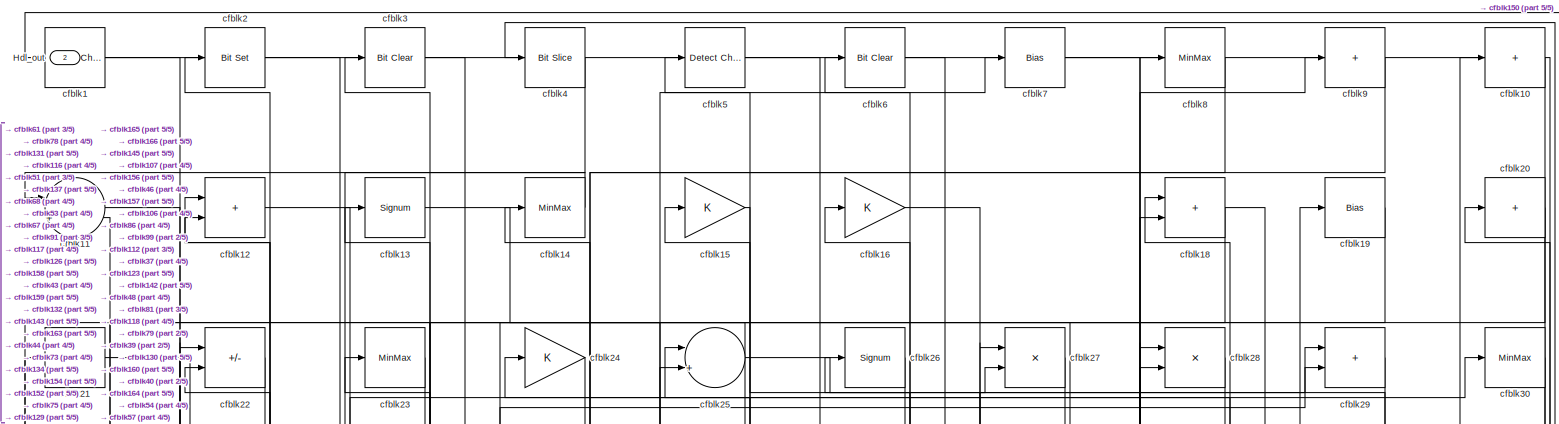
[diagram: root canvas - part 1/5, full width, top band]
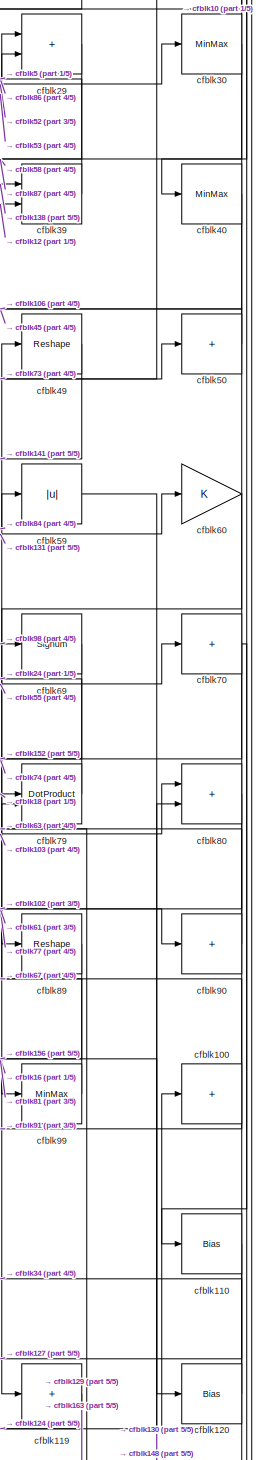
[diagram: root canvas - part 2/5, middle right region]
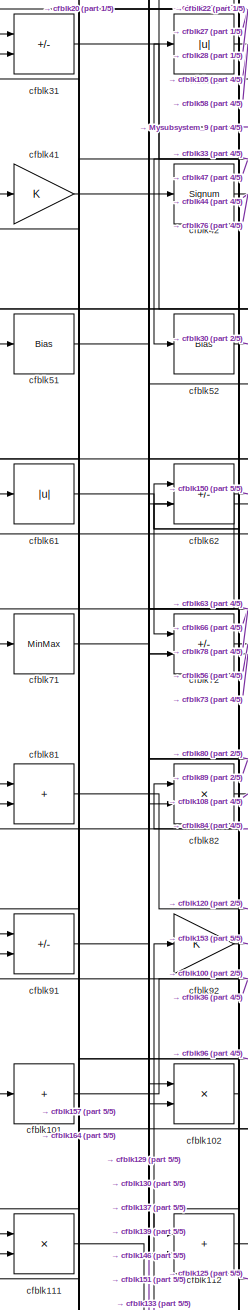
[diagram: root canvas - part 3/5, middle left region]
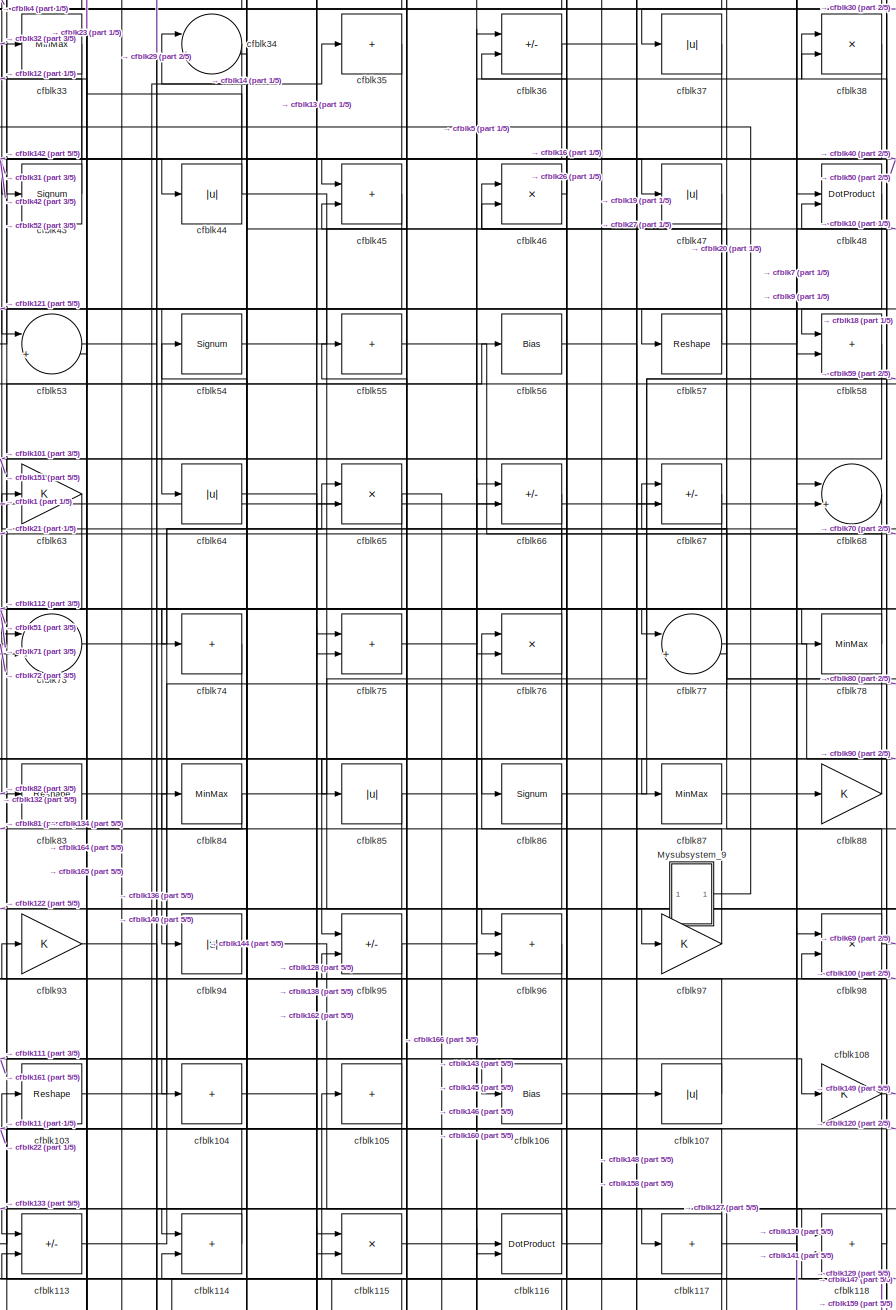
[diagram: root canvas - part 4/5, central region]
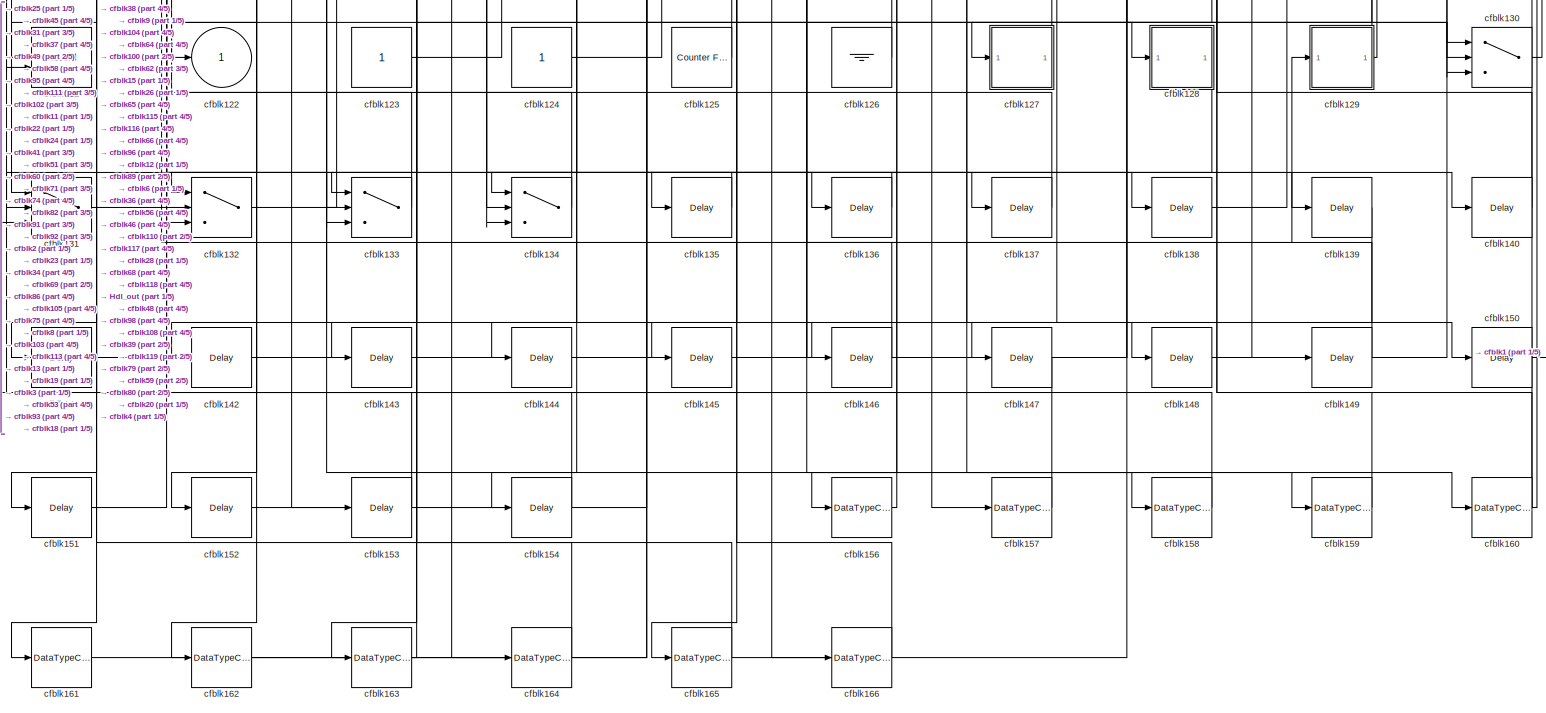
[diagram: root canvas - part 5/5, full width, bottom band]
MODEL slx_ee1c47e9f802
KIND model
CONFIG AbsTol = auto
CONFIG EnableMultiTasking = off
CONFIG FixedStep = auto
CONFIG MaxStep = auto
CONFIG MinStep = auto
CONFIG RelTol = 1e-3
CONFIG SampleTimeConstraint = Unconstrained
CONFIG SolverName = VariableStepAuto
CONFIG StartTime = 0.0
CONFIG StopTime = 10.0
BLOCK [Outport] Hdl_out
  OutDataTypeStr = uint8
  Port = 2
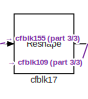
[diagram: Mysubsystem_9 - part 1/3, top right region]
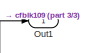
[diagram: Mysubsystem_9 - part 2/3, top left region]
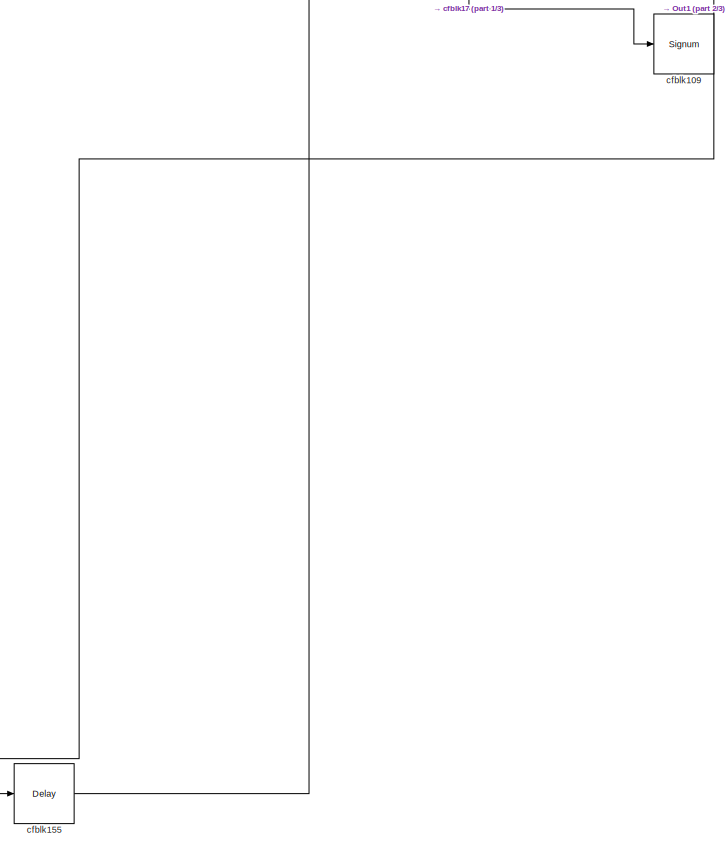
[diagram: Mysubsystem_9 - part 3/3, bottom right region]
BLOCK [SubSystem] Mysubsystem_9
  RTWFcnName = Mysubsystem_9
  RTWFcnNameOpts = User specified
  RTWFileNameOpts = Use function name
  RTWSystemCode = Reusable function
  TreatAsAtomicUnit = on
BLOCK [Outport] Mysubsystem_9/Out1
BLOCK [Signum] Mysubsystem_9/cfblk109
BLOCK [Delay] Mysubsystem_9/cfblk155
  InputPortMap = u0
  SampleTime = 1
BLOCK [Reshape] Mysubsystem_9/cfblk17
BLOCK [Reference] cfblk1  REF=simulink/Logic and Bit
Operations/Detect
Change
  LibrarySourceBlock = hdlsllib/Logic and Bit\nOperations/Detect\nChange
  SourceBlock = simulink/Logic and Bit\nOperations/Detect\nChange
  SourceType = Detect Change
BLOCK [Sum] cfblk10
  IconShape = rectangular
  Inputs = +
  OutDataTypeStr = uint8
BLOCK [Sum] cfblk100
  IconShape = rectangular
  Inputs = +
  OutDataTypeStr = uint8
BLOCK [Sum] cfblk101
  IconShape = rectangular
  Inputs = +
  OutDataTypeStr = uint8
BLOCK [Product] cfblk102
  Inputs = */
  OutDataTypeStr = uint8
  RndMeth = Zero
  SaturateOnIntegerOverflow = on
BLOCK [Reshape] cfblk103
BLOCK [Sum] cfblk104
  IconShape = rectangular
  Inputs = +
  OutDataTypeStr = uint8
BLOCK [Sum] cfblk105
  IconShape = rectangular
  Inputs = +
  OutDataTypeStr = uint8
BLOCK [Bias] cfblk106
  Bias = 0.0
  SaturateOnIntegerOverflow = off
BLOCK [Abs] cfblk107
  OutDataTypeStr = uint8
  SaturateOnIntegerOverflow = off
BLOCK [Gain] cfblk108
  OutDataTypeStr = uint8
BLOCK [Sum] cfblk11
  Inputs = |++
  OutDataTypeStr = uint8
BLOCK [Bias] cfblk110
  Bias = 0.0
  SaturateOnIntegerOverflow = off
BLOCK [Product] cfblk111
  Inputs = */
  OutDataTypeStr = uint8
  RndMeth = Zero
  SaturateOnIntegerOverflow = on
BLOCK [Sum] cfblk112
  IconShape = rectangular
  OutDataTypeStr = uint8
BLOCK [Sum] cfblk113
  IconShape = rectangular
  Inputs = +-
  OutDataTypeStr = uint8
BLOCK [Sum] cfblk114
  IconShape = rectangular
  OutDataTypeStr = uint8
BLOCK [Product] cfblk115
  Inputs = */
  OutDataTypeStr = uint8
  RndMeth = Zero
  SaturateOnIntegerOverflow = on
BLOCK [DotProduct] cfblk116
  OutDataTypeStr = uint8
BLOCK [Sum] cfblk117
  IconShape = rectangular
  Inputs = +
  OutDataTypeStr = uint8
BLOCK [Sum] cfblk118
  IconShape = rectangular
  OutDataTypeStr = uint8
BLOCK [Sum] cfblk119
  IconShape = rectangular
  Inputs = +
  OutDataTypeStr = uint8
BLOCK [Sum] cfblk12
  IconShape = rectangular
  OutDataTypeStr = uint8
BLOCK [Bias] cfblk120
  Bias = 0.0
  SaturateOnIntegerOverflow = off
BLOCK [Record] cfblk121
  CompatibilityTag = XY
  FileSettingsInternal = {"entries":[{"content":{"excelSettings":{"content":{},"type":"Streamout.ExcelSettings"}},"type":"Streamout.FileSettingStorage","uuid":""}],"packageUris":["http:\/\/schema.mathworks.com\/mf0\/streamout_blocks\/R2020a"],"version":"1.0"}
  Layout = [1 1]
  SignalsInternal = {"entries":[{"content":{"signals":[{"content":{"blockPath":[],"dimensions":[1],"domain":"","lineColor":"#a2142f","plots":[1],"port":1,"signalID":19988,"signalName":"cfblk37"},"type":"RecordBlkView.Signal","uuid":""},{"content":{"blockPath":[],"dimensions":[1],"domain":"","lineColor":"#139fff","plots":[1],"port":2,"signalID":19991,"signalName":"cfblk45"},"type":"RecordBlkView.Signal","uuid":""}]},"...<+142ch>
  VisualizationBindings = {"xyplotplugin":{"info":[{"series":[{"bindingParametersList":[{"parameter":"X-Axis","signalID":19988,"signalName":"cfblk37"},{"parameter":"Y-Axis","signalID":19991,"signalName":"cfblk45"}],"seriesID":20262}],"subplotID":1}]}}
  st = -1
BLOCK [Outport] cfblk122
  OutDataTypeStr = uint8
  VectorParamsAs1DForOutWhenUnconnected = off
BLOCK [Constant] cfblk123
  OutDataTypeStr = uint8
  SampleTime = -1
BLOCK [Constant] cfblk124
  OutDataTypeStr = uint8
  SampleTime = -1
BLOCK [Reference] cfblk125  REF=hdlsllib/Sources/Counter
Free-Running
  SourceBlock = hdlsllib/Sources/Counter\nFree-Running
  SourceType = Counter Free-Running
BLOCK [Ground] cfblk126
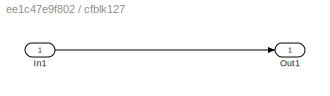
BLOCK [SubSystem] cfblk127
  LibrarySourceBlock = hdlsllib/Ports &\nSubsystems/Subsystem
BLOCK [Inport] cfblk127/In1
BLOCK [Outport] cfblk127/Out1
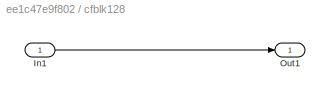
BLOCK [SubSystem] cfblk128
  LibrarySourceBlock = hdlsllib/Ports &\nSubsystems/Subsystem
BLOCK [Inport] cfblk128/In1
BLOCK [Outport] cfblk128/Out1
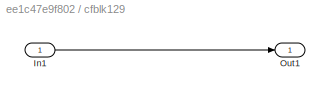
BLOCK [SubSystem] cfblk129
  LibrarySourceBlock = hdlsllib/Ports &\nSubsystems/Subsystem
BLOCK [Inport] cfblk129/In1
BLOCK [Outport] cfblk129/Out1
BLOCK [Signum] cfblk13
BLOCK [Switch] cfblk130
  InputSameDT = off
  OutDataTypeStr = uint8
  SaturateOnIntegerOverflow = off
BLOCK [Switch] cfblk131
  InputSameDT = off
  OutDataTypeStr = uint8
  SaturateOnIntegerOverflow = off
BLOCK [Switch] cfblk132
  InputSameDT = off
  OutDataTypeStr = uint8
  SaturateOnIntegerOverflow = off
BLOCK [Switch] cfblk133
  InputSameDT = off
  OutDataTypeStr = uint8
  SaturateOnIntegerOverflow = off
BLOCK [Switch] cfblk134
  InputSameDT = off
  OutDataTypeStr = uint8
  SaturateOnIntegerOverflow = off
BLOCK [Delay] cfblk135
  InputPortMap = u0
  SampleTime = 1
BLOCK [Delay] cfblk136
  InputPortMap = u0
  SampleTime = 1
BLOCK [Delay] cfblk137
  InputPortMap = u0
  SampleTime = 1
BLOCK [Delay] cfblk138
  InputPortMap = u0
  SampleTime = 1
BLOCK [Delay] cfblk139
  InputPortMap = u0
  SampleTime = 1
BLOCK [MinMax] cfblk14
  OutDataTypeStr = uint8
BLOCK [Delay] cfblk140
  InputPortMap = u0
  SampleTime = 1
BLOCK [Delay] cfblk141
  InputPortMap = u0
  SampleTime = 1
BLOCK [Delay] cfblk142
  InputPortMap = u0
  SampleTime = 1
BLOCK [Delay] cfblk143
  InputPortMap = u0
  SampleTime = 1
BLOCK [Delay] cfblk144
  InputPortMap = u0
  SampleTime = 1
BLOCK [Delay] cfblk145
  InputPortMap = u0
  SampleTime = 1
BLOCK [Delay] cfblk146
  InputPortMap = u0
  SampleTime = 1
BLOCK [Delay] cfblk147
  InputPortMap = u0
  SampleTime = 1
BLOCK [Delay] cfblk148
  InputPortMap = u0
  SampleTime = 1
BLOCK [Delay] cfblk149
  InputPortMap = u0
  SampleTime = 1
BLOCK [Gain] cfblk15
  OutDataTypeStr = uint8
BLOCK [Delay] cfblk150
  InputPortMap = u0
  SampleTime = 1
BLOCK [Delay] cfblk151
  InputPortMap = u0
  SampleTime = 1
BLOCK [Delay] cfblk152
  InputPortMap = u0
  SampleTime = 1
BLOCK [Delay] cfblk153
  InputPortMap = u0
  SampleTime = 1
BLOCK [Delay] cfblk154
  InputPortMap = u0
  SampleTime = 1
BLOCK [DataTypeConversion] cfblk156
  OutDataTypeStr = uint8
  RndMeth = Floor
  SaturateOnIntegerOverflow = off
BLOCK [DataTypeConversion] cfblk157
  OutDataTypeStr = uint8
  RndMeth = Floor
  SaturateOnIntegerOverflow = off
BLOCK [DataTypeConversion] cfblk158
  OutDataTypeStr = uint8
  RndMeth = Floor
  SaturateOnIntegerOverflow = off
BLOCK [DataTypeConversion] cfblk159
  OutDataTypeStr = uint8
  RndMeth = Floor
  SaturateOnIntegerOverflow = off
BLOCK [Gain] cfblk16
  OutDataTypeStr = uint8
BLOCK [DataTypeConversion] cfblk160
  OutDataTypeStr = uint8
  RndMeth = Floor
  SaturateOnIntegerOverflow = off
BLOCK [DataTypeConversion] cfblk161
  OutDataTypeStr = uint8
  RndMeth = Floor
  SaturateOnIntegerOverflow = off
BLOCK [DataTypeConversion] cfblk162
  OutDataTypeStr = uint8
  RndMeth = Floor
  SaturateOnIntegerOverflow = off
BLOCK [DataTypeConversion] cfblk163
  OutDataTypeStr = uint8
  RndMeth = Floor
  SaturateOnIntegerOverflow = off
BLOCK [DataTypeConversion] cfblk164
  OutDataTypeStr = uint8
  RndMeth = Floor
  SaturateOnIntegerOverflow = off
BLOCK [DataTypeConversion] cfblk165
  OutDataTypeStr = uint8
  RndMeth = Floor
  SaturateOnIntegerOverflow = off
BLOCK [DataTypeConversion] cfblk166
  OutDataTypeStr = uint8
  RndMeth = Floor
  SaturateOnIntegerOverflow = off
BLOCK [Sum] cfblk18
  IconShape = rectangular
  OutDataTypeStr = uint8
BLOCK [Bias] cfblk19
  Bias = 0.0
  SaturateOnIntegerOverflow = off
BLOCK [Reference] cfblk2  REF=simulink/Logic and Bit
Operations/Bit Set
  LibrarySourceBlock = hdlsllib/Logic and Bit\nOperations/Bit Set
  SourceBlock = simulink/Logic and Bit\nOperations/Bit Set
  SourceType = Bit Set
BLOCK [Sum] cfblk20
  IconShape = rectangular
  Inputs = +
  OutDataTypeStr = uint8
BLOCK [Sum] cfblk21
  IconShape = rectangular
  Inputs = +
  OutDataTypeStr = uint8
BLOCK [Sum] cfblk22
  IconShape = rectangular
  Inputs = +-
  OutDataTypeStr = uint8
BLOCK [MinMax] cfblk23
  OutDataTypeStr = uint8
BLOCK [Gain] cfblk24
  OutDataTypeStr = uint8
BLOCK [Sum] cfblk25
  Inputs = |++
  OutDataTypeStr = uint8
BLOCK [Signum] cfblk26
BLOCK [Product] cfblk27
  Inputs = */
  OutDataTypeStr = uint8
  RndMeth = Zero
  SaturateOnIntegerOverflow = on
BLOCK [Product] cfblk28
  Inputs = */
  OutDataTypeStr = uint8
  RndMeth = Zero
  SaturateOnIntegerOverflow = on
BLOCK [Sum] cfblk29
  IconShape = rectangular
  OutDataTypeStr = uint8
BLOCK [Reference] cfblk3  REF=simulink/Logic and Bit
Operations/Bit Clear
  LibrarySourceBlock = hdlsllib/Logic and Bit\nOperations/Bit Clear
  SourceBlock = simulink/Logic and Bit\nOperations/Bit Clear
  SourceType = Bit Clear
BLOCK [MinMax] cfblk30
  OutDataTypeStr = uint8
BLOCK [Sum] cfblk31
  IconShape = rectangular
  Inputs = +-
  OutDataTypeStr = uint8
BLOCK [Abs] cfblk32
  OutDataTypeStr = uint8
  SaturateOnIntegerOverflow = off
BLOCK [MinMax] cfblk33
  OutDataTypeStr = uint8
BLOCK [Sum] cfblk34
  Inputs = |++
  OutDataTypeStr = uint8
BLOCK [Sum] cfblk35
  IconShape = rectangular
  Inputs = +
  OutDataTypeStr = uint8
BLOCK [Sum] cfblk36
  IconShape = rectangular
  Inputs = +-
  OutDataTypeStr = uint8
BLOCK [Abs] cfblk37
  OutDataTypeStr = uint8
  SaturateOnIntegerOverflow = off
BLOCK [Product] cfblk38
  Inputs = */
  OutDataTypeStr = uint8
  RndMeth = Zero
  SaturateOnIntegerOverflow = on
BLOCK [Sum] cfblk39
  IconShape = rectangular
  OutDataTypeStr = uint8
BLOCK [Reference] cfblk4  REF=hdlsllib/Logic and Bit
Operations/Bit Slice
  SourceBlock = hdlsllib/Logic and Bit\nOperations/Bit Slice
  SourceType = Bit Slice
BLOCK [MinMax] cfblk40
  OutDataTypeStr = uint8
BLOCK [Gain] cfblk41
  OutDataTypeStr = uint8
BLOCK [Signum] cfblk42
BLOCK [Signum] cfblk43
BLOCK [Abs] cfblk44
  OutDataTypeStr = uint8
  SaturateOnIntegerOverflow = off
BLOCK [Sum] cfblk45
  IconShape = rectangular
  OutDataTypeStr = uint8
BLOCK [Product] cfblk46
  Inputs = */
  OutDataTypeStr = uint8
  RndMeth = Zero
  SaturateOnIntegerOverflow = on
BLOCK [Abs] cfblk47
  OutDataTypeStr = uint8
  SaturateOnIntegerOverflow = off
BLOCK [DotProduct] cfblk48
  OutDataTypeStr = uint8
BLOCK [Reshape] cfblk49
BLOCK [Reference] cfblk5  REF=simulink/Logic and Bit
Operations/Detect
Change
  LibrarySourceBlock = hdlsllib/Logic and Bit\nOperations/Detect\nChange
  SourceBlock = simulink/Logic and Bit\nOperations/Detect\nChange
  SourceType = Detect Change
BLOCK [Sum] cfblk50
  IconShape = rectangular
  Inputs = +
  OutDataTypeStr = uint8
BLOCK [Bias] cfblk51
  Bias = 0.0
  SaturateOnIntegerOverflow = off
BLOCK [Bias] cfblk52
  Bias = 0.0
  SaturateOnIntegerOverflow = off
BLOCK [Sum] cfblk53
  Inputs = |++
  OutDataTypeStr = uint8
BLOCK [Signum] cfblk54
BLOCK [Sum] cfblk55
  IconShape = rectangular
  Inputs = +
  OutDataTypeStr = uint8
BLOCK [Bias] cfblk56
  Bias = 0.0
  SaturateOnIntegerOverflow = off
BLOCK [Reshape] cfblk57
BLOCK [Sum] cfblk58
  IconShape = rectangular
  OutDataTypeStr = uint8
BLOCK [Abs] cfblk59
  OutDataTypeStr = uint8
  SaturateOnIntegerOverflow = off
BLOCK [Reference] cfblk6  REF=simulink/Logic and Bit
Operations/Bit Clear
  LibrarySourceBlock = hdlsllib/Logic and Bit\nOperations/Bit Clear
  SourceBlock = simulink/Logic and Bit\nOperations/Bit Clear
  SourceType = Bit Clear
BLOCK [Gain] cfblk60
  OutDataTypeStr = uint8
BLOCK [Abs] cfblk61
  OutDataTypeStr = uint8
  SaturateOnIntegerOverflow = off
BLOCK [Sum] cfblk62
  IconShape = rectangular
  Inputs = +-
  OutDataTypeStr = uint8
BLOCK [Gain] cfblk63
  OutDataTypeStr = uint8
BLOCK [Abs] cfblk64
  OutDataTypeStr = uint8
  SaturateOnIntegerOverflow = off
BLOCK [Product] cfblk65
  Inputs = */
  OutDataTypeStr = uint8
  RndMeth = Zero
  SaturateOnIntegerOverflow = on
BLOCK [Sum] cfblk66
  IconShape = rectangular
  Inputs = +-
  OutDataTypeStr = uint8
BLOCK [Sum] cfblk67
  IconShape = rectangular
  Inputs = +-
  OutDataTypeStr = uint8
BLOCK [Sum] cfblk68
  Inputs = |++
  OutDataTypeStr = uint8
BLOCK [Signum] cfblk69
BLOCK [Bias] cfblk7
  Bias = 0.0
  SaturateOnIntegerOverflow = off
BLOCK [Sum] cfblk70
  IconShape = rectangular
  Inputs = +
  OutDataTypeStr = uint8
BLOCK [MinMax] cfblk71
  OutDataTypeStr = uint8
BLOCK [Sum] cfblk72
  IconShape = rectangular
  Inputs = +-
  OutDataTypeStr = uint8
BLOCK [Sum] cfblk73
  Inputs = |++
  OutDataTypeStr = uint8
BLOCK [Sum] cfblk74
  IconShape = rectangular
  Inputs = +
  OutDataTypeStr = uint8
BLOCK [Sum] cfblk75
  IconShape = rectangular
  OutDataTypeStr = uint8
BLOCK [Product] cfblk76
  Inputs = */
  OutDataTypeStr = uint8
  RndMeth = Zero
  SaturateOnIntegerOverflow = on
BLOCK [Sum] cfblk77
  Inputs = |++
  OutDataTypeStr = uint8
BLOCK [MinMax] cfblk78
  OutDataTypeStr = uint8
BLOCK [DotProduct] cfblk79
  OutDataTypeStr = uint8
BLOCK [MinMax] cfblk8
  OutDataTypeStr = uint8
BLOCK [Sum] cfblk80
  IconShape = rectangular
  OutDataTypeStr = uint8
BLOCK [Sum] cfblk81
  IconShape = rectangular
  OutDataTypeStr = uint8
BLOCK [Product] cfblk82
  Inputs = */
  OutDataTypeStr = uint8
  RndMeth = Zero
  SaturateOnIntegerOverflow = on
BLOCK [Reshape] cfblk83
BLOCK [MinMax] cfblk84
  OutDataTypeStr = uint8
BLOCK [Abs] cfblk85
  OutDataTypeStr = uint8
  SaturateOnIntegerOverflow = off
BLOCK [Signum] cfblk86
BLOCK [MinMax] cfblk87
  OutDataTypeStr = uint8
BLOCK [Gain] cfblk88
  OutDataTypeStr = uint8
BLOCK [Reshape] cfblk89
BLOCK [Sum] cfblk9
  IconShape = rectangular
  Inputs = +
  OutDataTypeStr = uint8
BLOCK [Sum] cfblk90
  IconShape = rectangular
  Inputs = +
  OutDataTypeStr = uint8
BLOCK [Sum] cfblk91
  IconShape = rectangular
  Inputs = +-
  OutDataTypeStr = uint8
BLOCK [Gain] cfblk92
  OutDataTypeStr = uint8
BLOCK [Gain] cfblk93
  OutDataTypeStr = uint8
BLOCK [Abs] cfblk94
  OutDataTypeStr = uint8
  SaturateOnIntegerOverflow = off
BLOCK [Sum] cfblk95
  IconShape = rectangular
  Inputs = +-
  OutDataTypeStr = uint8
BLOCK [Sum] cfblk96
  IconShape = rectangular
  OutDataTypeStr = uint8
BLOCK [Gain] cfblk97
  OutDataTypeStr = uint8
BLOCK [Product] cfblk98
  Inputs = */
  OutDataTypeStr = uint8
  RndMeth = Zero
  SaturateOnIntegerOverflow = on
BLOCK [MinMax] cfblk99
  OutDataTypeStr = uint8
NET Mysubsystem_9/cfblk109:1 -> Mysubsystem_9/Out1:1, Mysubsystem_9/cfblk155:1
LINE Mysubsystem_9/cfblk155:1 -> Mysubsystem_9/cfblk17:1
LINE Mysubsystem_9/cfblk17:1 -> Mysubsystem_9/cfblk109:1
LINE Mysubsystem_9:1 -> cfblk32:1
NET cfblk100:1 -> cfblk67:1, cfblk91:2
LINE cfblk101:1 -> cfblk36:1
LINE cfblk102:1 -> cfblk82:1
LINE cfblk103:1 -> cfblk80:1
NET cfblk104:1 -> cfblk128:1, cfblk84:1
NET cfblk105:1 -> cfblk133:2, cfblk54:1
LINE cfblk106:1 -> cfblk27:1
NET cfblk107:1 -> cfblk26:1, cfblk95:2
NET cfblk108:1 -> cfblk133:1, cfblk149:1, cfblk36:2
LINE cfblk10:1 -> cfblk40:1
LINE cfblk110:1 -> cfblk127:1
LINE cfblk111:1 -> cfblk129:1
LINE cfblk112:1 -> cfblk28:2
LINE cfblk113:1 -> cfblk65:1
LINE cfblk114:1 -> cfblk35:1
LINE cfblk115:1 -> cfblk160:1
NET cfblk116:1 -> cfblk107:1, cfblk11:2
NET cfblk117:1 -> cfblk114:2, cfblk130:3, cfblk22:2, cfblk34:2
NET cfblk118:1 -> cfblk147:1, cfblk18:1
LINE cfblk119:1 -> cfblk163:1
LINE cfblk11:1 -> cfblk137:1
LINE cfblk120:1 -> cfblk34:1
LINE cfblk123:1 -> cfblk18:2
LINE cfblk124:1 -> cfblk100:1
LINE cfblk125:1 -> cfblk62:1
LINE cfblk126:1 -> cfblk12:2
LINE cfblk127/In1:1 -> cfblk127/Out1:1
LINE cfblk127:1 -> cfblk46:2
LINE cfblk128/In1:1 -> cfblk128/Out1:1
LINE cfblk128:1 -> cfblk135:1
LINE cfblk129/In1:1 -> cfblk129/Out1:1
NET cfblk129:1 -> cfblk25:1, cfblk45:2, cfblk79:2
LINE cfblk12:1 -> cfblk39:2
LINE cfblk130:1 -> cfblk4:1
LINE cfblk131:1 -> cfblk60:1
NET cfblk132:1 -> cfblk75:1, cfblk8:1
LINE cfblk133:1 -> cfblk92:1
LINE cfblk134:1 -> cfblk93:1
LINE cfblk135:1 -> cfblk131:2
LINE cfblk136:1 -> cfblk134:2
LINE cfblk137:1 -> cfblk102:1
LINE cfblk138:1 -> cfblk39:1
LINE cfblk139:1 -> cfblk162:1
LINE cfblk13:1 -> cfblk75:2
LINE cfblk140:1 -> cfblk118:2
LINE cfblk141:1 -> cfblk68:1
LINE cfblk142:1 -> cfblk28:1
LINE cfblk143:1 -> cfblk116:1
LINE cfblk144:1 -> cfblk65:2
LINE cfblk145:1 -> cfblk96:2
LINE cfblk146:1 -> cfblk66:1
LINE cfblk147:1 -> cfblk131:3
LINE cfblk148:1 -> cfblk80:2
LINE cfblk149:1 -> cfblk113:2
LINE cfblk14:1 -> cfblk11:1
LINE cfblk150:1 -> cfblk1:1
LINE cfblk151:1 -> cfblk82:2
LINE cfblk152:1 -> cfblk25:2
LINE cfblk153:1 -> cfblk111:2
LINE cfblk154:1 -> cfblk22:1
LINE cfblk156:1 -> cfblk6:1
NET cfblk157:1 -> cfblk31:1, cfblk41:1
LINE cfblk158:1 -> cfblk2:1
LINE cfblk159:1 -> cfblk98:2
LINE cfblk15:1 -> cfblk165:1
NET cfblk160:1 -> Hdl_out:1, cfblk20:1, cfblk38:2, cfblk48:2
LINE cfblk161:1 -> cfblk115:1
LINE cfblk162:1 -> cfblk115:2
LINE cfblk163:1 -> cfblk3:1
NET cfblk164:1 -> cfblk103:1, cfblk31:2
NET cfblk165:1 -> cfblk13:1, cfblk98:1
LINE cfblk166:1 -> cfblk15:1
LINE cfblk16:1 -> cfblk99:1
NET cfblk18:1 -> cfblk134:3, cfblk79:1
LINE cfblk19:1 -> cfblk143:1
LINE cfblk1:1 -> cfblk68:2
NET cfblk20:1 -> cfblk37:1, cfblk51:1, cfblk73:1
NET cfblk21:1 -> cfblk53:1, cfblk67:2
LINE cfblk22:1 -> cfblk91:1
LINE cfblk23:1 -> cfblk132:1
LINE cfblk24:1 -> cfblk132:3
NET cfblk25:1 -> cfblk131:1, cfblk27:2, cfblk61:1
LINE cfblk26:1 -> cfblk145:1
LINE cfblk27:1 -> cfblk112:1
LINE cfblk28:1 -> cfblk81:1
NET cfblk29:1 -> cfblk77:1, cfblk87:1
LINE cfblk2:1 -> cfblk159:1
LINE cfblk30:1 -> cfblk58:1
LINE cfblk31:1 -> cfblk47:1
NET cfblk32:1 -> cfblk105:1, cfblk58:2
LINE cfblk33:1 -> cfblk52:1
LINE cfblk34:1 -> cfblk142:1
LINE cfblk35:1 -> cfblk83:1
NET cfblk36:1 -> cfblk104:1, cfblk148:1
LINE cfblk37:1 -> cfblk121:1
LINE cfblk38:1 -> cfblk144:1
LINE cfblk39:1 -> cfblk5:1
LINE cfblk3:1 -> cfblk164:1
LINE cfblk40:1 -> cfblk106:1
LINE cfblk41:1 -> cfblk130:2
NET cfblk42:1 -> cfblk44:1, cfblk76:2
LINE cfblk43:1 -> cfblk12:1
NET cfblk44:1 -> cfblk23:1, cfblk96:1
NET cfblk45:1 -> cfblk121:2, cfblk64:1
LINE cfblk46:1 -> cfblk16:1
LINE cfblk47:1 -> cfblk57:1
LINE cfblk48:1 -> cfblk53:2
LINE cfblk49:1 -> cfblk141:1
LINE cfblk4:1 -> cfblk43:1
LINE cfblk50:1 -> cfblk45:1
NET cfblk51:1 -> cfblk139:1, cfblk78:1
LINE cfblk52:1 -> cfblk30:1
NET cfblk53:1 -> cfblk140:1, cfblk29:2
NET cfblk54:1 -> cfblk10:1, cfblk7:1
LINE cfblk55:1 -> cfblk70:1
LINE cfblk56:1 -> cfblk158:1
NET cfblk57:1 -> cfblk14:1, cfblk9:1
NET cfblk58:1 -> cfblk101:1, cfblk151:1
LINE cfblk59:1 -> cfblk130:1
LINE cfblk5:1 -> cfblk118:1
LINE cfblk60:1 -> cfblk119:1
NET cfblk61:1 -> cfblk72:1, cfblk89:1
NET cfblk62:1 -> cfblk150:1, cfblk72:2
LINE cfblk63:1 -> cfblk112:2
LINE cfblk64:1 -> cfblk138:1
NET cfblk65:1 -> cfblk166:1, cfblk94:1
LINE cfblk66:1 -> cfblk71:1
LINE cfblk67:1 -> cfblk114:1
LINE cfblk68:1 -> cfblk85:1
NET cfblk69:1 -> cfblk152:1, cfblk77:2
LINE cfblk6:1 -> cfblk157:1
NET cfblk70:1 -> cfblk110:1, cfblk74:1
NET cfblk71:1 -> cfblk146:1, cfblk73:2
LINE cfblk72:1 -> cfblk56:1
LINE cfblk73:1 -> cfblk50:1
LINE cfblk74:1 -> cfblk132:2
LINE cfblk75:1 -> cfblk66:2
NET cfblk76:1 -> cfblk55:1, cfblk95:1
LINE cfblk77:1 -> cfblk90:1
LINE cfblk78:1 -> cfblk21:1
LINE cfblk79:1 -> cfblk24:1
LINE cfblk7:1 -> cfblk48:1
LINE cfblk80:1 -> cfblk102:2
LINE cfblk81:1 -> cfblk120:1
LINE cfblk82:1 -> cfblk108:1
LINE cfblk83:1 -> cfblk86:1
NET cfblk84:1 -> cfblk59:1, cfblk81:2
NET cfblk85:1 -> cfblk113:1, cfblk97:1
NET cfblk86:1 -> cfblk122:1, cfblk19:1, cfblk29:1
LINE cfblk87:1 -> cfblk88:1
LINE cfblk88:1 -> cfblk46:1
LINE cfblk89:1 -> cfblk156:1
LINE cfblk8:1 -> cfblk134:1
LINE cfblk90:1 -> cfblk63:1
NET cfblk91:1 -> cfblk133:3, cfblk42:1
NET cfblk92:1 -> cfblk153:1, cfblk62:2
NET cfblk93:1 -> cfblk116:2, cfblk136:1
LINE cfblk94:1 -> cfblk117:1
NET cfblk95:1 -> cfblk161:1, cfblk38:1
LINE cfblk96:1 -> cfblk111:1
LINE cfblk97:1 -> cfblk76:1
NET cfblk98:1 -> cfblk33:1, cfblk69:1
LINE cfblk99:1 -> cfblk49:1
LINE cfblk9:1 -> cfblk154:1
note: NET lines group one-source signal fan-out (src -> all destinations, sorted); 1:1 wires keep LINE
